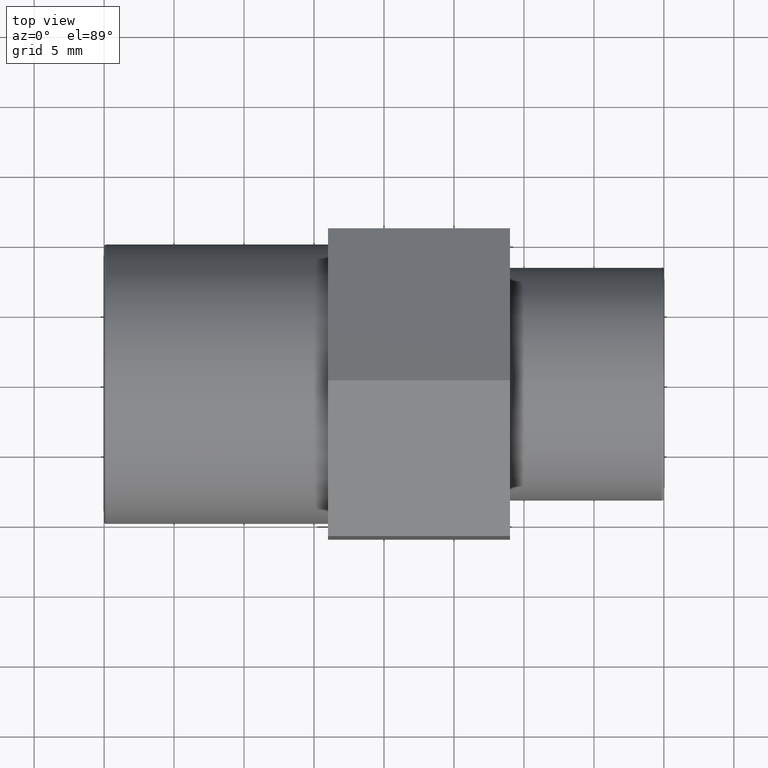
[diagram: clean part render]
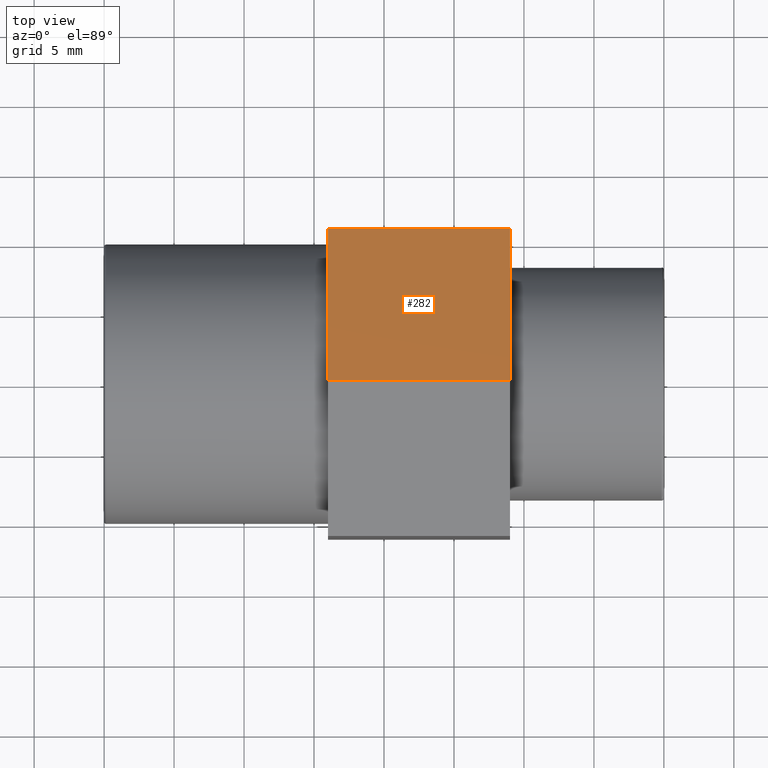
[diagram: same view with one face highlighted and labeled with its STEP entity id]
A machine part, top view. The second image highlights one B-rep face of the part: STEP entity #282.
In plain terms, the highlighted planar face has unit normal (-0, 0.5031, 0.8642).
Its self-contained STEP definition (entity closure, byte-faithful):
#55=FACE_OUTER_BOUND('',#76,.T.);
#76=EDGE_LOOP('',(#212,#213,#214,#215));
#115=LINE('',#442,#133);
#117=LINE('',#446,#135);
#118=LINE('',#448,#136);
#119=LINE('',#449,#137);
#133=VECTOR('',#349,13.);
#135=VECTOR('',#353,12.7017059221718);
#136=VECTOR('',#354,13.);
#137=VECTOR('',#355,12.7017059221718);
#150=VERTEX_POINT('',#439);
#151=VERTEX_POINT('',#441);
#152=VERTEX_POINT('',#445);
#153=VERTEX_POINT('',#447);
#177=EDGE_CURVE('',#151,#150,#115,.T.);
#179=EDGE_CURVE('',#150,#152,#117,.T.);
#180=EDGE_CURVE('',#153,#152,#118,.T.);
#181=EDGE_CURVE('',#153,#151,#119,.T.);
#212=ORIENTED_EDGE('',*,*,#179,.T.);
#213=ORIENTED_EDGE('',*,*,#180,.F.);
#214=ORIENTED_EDGE('',*,*,#181,.T.);
#215=ORIENTED_EDGE('',*,*,#177,.T.);
#270=PLANE('',#305);
#282=ADVANCED_FACE('',(#55),#270,.T.);
#305=AXIS2_PLACEMENT_3D('',#444,#351,#352);
#349=DIRECTION('',(1.,6.8321416900009E-16,0.));
#351=DIRECTION('center_axis',(-3.43746302102261E-16,0.503131108368766,0.864210094705921));
#352=DIRECTION('ref_axis',(6.21724893790088E-16,-0.864210094705921,0.503131108368766));
#353=DIRECTION('',(-5.8209366944984E-16,0.864210094705921,-0.503131108368766));
#354=DIRECTION('',(1.,6.8321416900009E-16,0.));
#355=DIRECTION('',(5.8209366944984E-16,-0.864210094705921,0.503131108368766));
#439=CARTESIAN_POINT('',(9.00000000000001,0.0459709530930354,12.7016227311633));
#441=CARTESIAN_POINT('',(-4.,0.0459709530930266,12.7016227311633));
#442=CARTESIAN_POINT('',(-4.,0.0459709530930266,12.7016227311633));
#444=CARTESIAN_POINT('Origin',(-4.00000000000001,11.0229134310198,6.31099935236693));
#445=CARTESIAN_POINT('',(9.,11.0229134310199,6.31099935236693));
#446=CARTESIAN_POINT('',(9.00000000000001,8.27867781153815,7.90865519706603));
#447=CARTESIAN_POINT('',(-4.00000000000001,11.0229134310198,6.31099935236693));
#448=CARTESIAN_POINT('',(-4.00000000000001,11.0229134310198,6.31099935236693));
#449=CARTESIAN_POINT('',(-4.00000000000001,11.0229134310198,6.31099935236693));